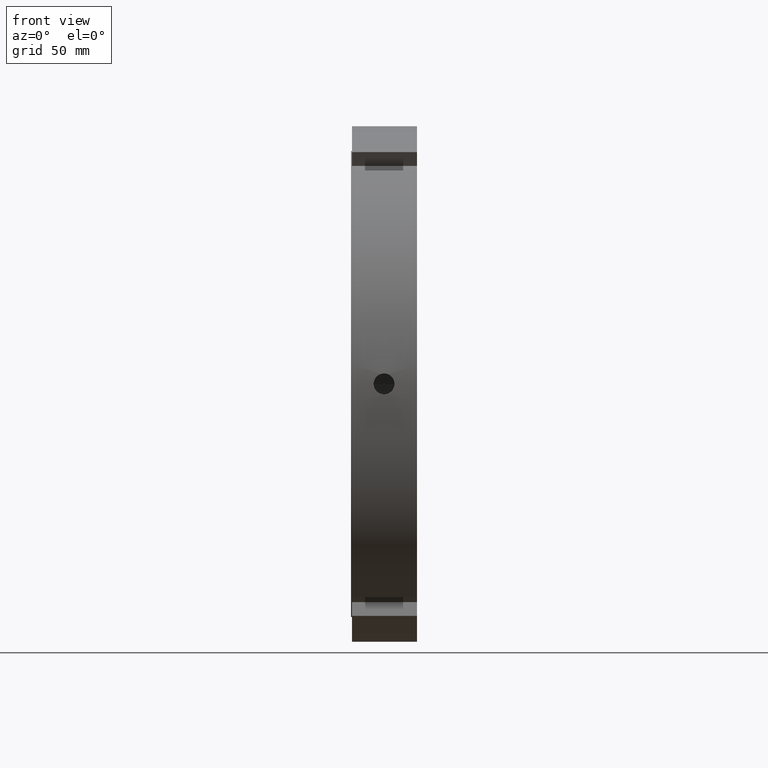
[diagram: clean part render]
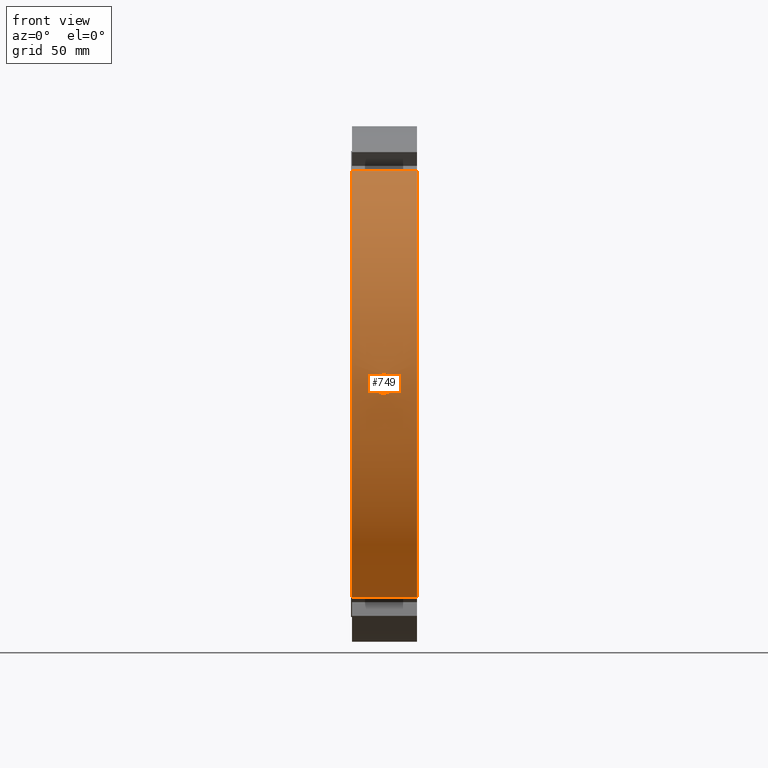
[diagram: same view with one face highlighted and labeled with its STEP entity id]
A machine part, front view. The second image highlights one B-rep face of the part: STEP entity #749.
In plain terms, the highlighted cylindrical surface (partial cylindrical patch) has radius 125 mm, axis along (1, 0, 0).
Its self-contained STEP definition (entity closure, byte-faithful):
#249=CARTESIAN_POINT('',(15.999999999999975,-124.89902476545537,5.023306942460057));
#250=VERTEX_POINT('',#249);
#251=CARTESIAN_POINT('',(15.999999999999975,-124.89902476545537,5.023306942460057));
#252=CARTESIAN_POINT('',(16.634539898765915,-124.89902476545537,5.023306942460057));
#253=CARTESIAN_POINT('',(17.3113281758908,-124.90432763803565,4.896479906098045));
#254=CARTESIAN_POINT('',(18.556263846837641,-124.92347793946837,4.380780483093657));
#255=CARTESIAN_POINT('',(19.124417048440165,-124.93704831390241,3.991911865777468));
#256=CARTESIAN_POINT('',(20.021609249121365,-124.96249085611598,3.094717982920154));
#257=CARTESIAN_POINT('',(20.41047645229046,-124.97601378718123,2.526565421343341));
#258=CARTESIAN_POINT('',(20.926173719096202,-124.99497980045606,1.281631633612602));
#259=CARTESIAN_POINT('',(21.052999999999976,-125.00014720421223,0.604844655944191));
#260=CARTESIAN_POINT('',(21.052999999999976,-124.99984574124191,-0.66423550453621));
#261=CARTESIAN_POINT('',(20.926172027311864,-124.99435672959663,-1.341024666865077));
#262=CARTESIAN_POINT('',(20.410471918155384,-124.97479895604033,-2.585959648075895));
#263=CARTESIAN_POINT('',(20.021603653115164,-124.96100586464749,-3.154111386131571));
#264=CARTESIAN_POINT('',(19.124412178461185,-124.93513662270388,-4.051301158710786));
#265=CARTESIAN_POINT('',(18.556261137858201,-124.92138123172165,-4.44016793137994));
#266=CARTESIAN_POINT('',(17.311328183428699,-124.90198546960805,-4.955865807010313));
#267=CARTESIAN_POINT('',(16.634540372385892,-124.89662217723438,-5.082693057539943));
#268=CARTESIAN_POINT('',(15.365459627614054,-124.89662217723438,-5.082693057539943));
#269=CARTESIAN_POINT('',(14.688671816571244,-124.90198546960805,-4.955865807010311));
#270=CARTESIAN_POINT('',(13.443738862141743,-124.92138123172165,-4.440167931379937));
#271=CARTESIAN_POINT('',(12.875587821538765,-124.93513662270388,-4.051301158710788));
#272=CARTESIAN_POINT('',(11.978396346884782,-124.96100586464749,-3.154111386131573));
#273=CARTESIAN_POINT('',(11.589528081844565,-124.97479895604033,-2.585959648075896));
#274=CARTESIAN_POINT('',(11.073827972688083,-124.99435672959663,-1.341024666865078));
#275=CARTESIAN_POINT('',(10.946999999999974,-124.99984574124191,-0.664235504536213));
#276=CARTESIAN_POINT('',(10.946999999999974,-125.00014720421223,0.604844655944188));
#277=CARTESIAN_POINT('',(11.073826280903747,-124.99497980045606,1.281631633612598));
#278=CARTESIAN_POINT('',(11.589523547709488,-124.97601378718123,2.526565421343338));
#279=CARTESIAN_POINT('',(11.978390750878582,-124.96249085611598,3.094717982920152));
#280=CARTESIAN_POINT('',(12.875582951559785,-124.93704831390241,3.991911865777468));
#281=CARTESIAN_POINT('',(13.443736153162309,-124.92347793946837,4.380780483093658));
#282=CARTESIAN_POINT('',(14.688671824109152,-124.90432763803565,4.896479906098046));
#283=CARTESIAN_POINT('',(15.365460101234035,-124.89902476545537,5.023306942460057));
#284=CARTESIAN_POINT('',(15.999999999999975,-124.89902476545537,5.023306942460057));
#285=B_SPLINE_CURVE_WITH_KNOTS('',3,(#251,#252,#253,#254,#255,#256,#257,#258,#259,#260,#261,#262,#263,#264,#265,#266,#267,#268,#269,#270,#271,#272,#273,#274,#275,#276,#277,#278,#279,#280,#281,#282,#283,#284),.UNSPECIFIED.,.T.,.U.,(4,2,2,2,2,2,2,2,2,2,2,2,2,2,2,2,4),(0.0,0.190361969629782,0.380723939259564,0.571085258675599,0.761446578091633,0.951809317561348,1.142172057031063,1.332534168746839,1.522896280462614,1.71325839217839,1.903620503894165,2.09398324336388,2.284345982833595,2.474707302249629,2.665068621665664,2.855430591295447,3.045792560925229),.UNSPECIFIED.);
#286=EDGE_CURVE('',#250,#250,#285,.T.);
#339=CARTESIAN_POINT('',(0.499999999999963,-70.132018136094786,-103.47221864905804));
#340=VERTEX_POINT('',#339);
#355=CARTESIAN_POINT('',(31.999999999999975,-70.132018136094786,-103.47221864905804));
#356=VERTEX_POINT('',#355);
#363=CARTESIAN_POINT('',(0.499999999999964,-70.132018136094786,-103.47221864905802));
#364=DIRECTION('',(1.0,0.0,0.0));
#365=VECTOR('',#364,31.500000000000014);
#366=LINE('',#363,#365);
#367=EDGE_CURVE('',#340,#356,#366,.T.);
#510=CARTESIAN_POINT('',(0.499999999999963,-70.132018136094729,103.47221864905805));
#511=VERTEX_POINT('',#510);
#518=CARTESIAN_POINT('',(31.999999999999975,-70.132018136094729,103.47221864905805));
#519=VERTEX_POINT('',#518);
#520=CARTESIAN_POINT('',(31.999999999999979,-70.132018136094729,103.47221864905805));
#521=DIRECTION('',(-1.0,0.0,0.0));
#522=VECTOR('',#521,31.500000000000014);
#523=LINE('',#520,#522);
#524=EDGE_CURVE('',#519,#511,#523,.T.);
#587=CARTESIAN_POINT('',(31.999999999999975,0.0,0.0));
#588=DIRECTION('',(1.0,0.0,0.0));
#589=DIRECTION('',(0.0,1.0,0.0));
#590=AXIS2_PLACEMENT_3D('',#587,#588,#589);
#591=CIRCLE('',#590,125.0);
#592=EDGE_CURVE('',#519,#356,#591,.T.);
#729=CARTESIAN_POINT('',(16.249999999999968,0.0,0.0));
#730=DIRECTION('',(1.0,0.0,0.0));
#731=DIRECTION('',(0.0,1.0,0.0));
#732=AXIS2_PLACEMENT_3D('',#729,#730,#731);
#733=CYLINDRICAL_SURFACE('',#732,125.0);
#734=ORIENTED_EDGE('',*,*,#367,.T.);
#735=ORIENTED_EDGE('',*,*,#592,.F.);
#736=ORIENTED_EDGE('',*,*,#524,.T.);
#737=CARTESIAN_POINT('',(0.499999999999963,0.0,0.0));
#738=DIRECTION('',(1.0,0.0,0.0));
#739=DIRECTION('',(0.0,1.0,0.0));
#740=AXIS2_PLACEMENT_3D('',#737,#738,#739);
#741=CIRCLE('',#740,125.0);
#742=EDGE_CURVE('',#511,#340,#741,.T.);
#743=ORIENTED_EDGE('',*,*,#742,.T.);
#744=EDGE_LOOP('',(#734,#735,#736,#743));
#745=FACE_OUTER_BOUND('',#744,.T.);
#746=ORIENTED_EDGE('',*,*,#286,.T.);
#747=EDGE_LOOP('',(#746));
#748=FACE_BOUND('',#747,.T.);
#749=ADVANCED_FACE('',(#745,#748),#733,.T.);